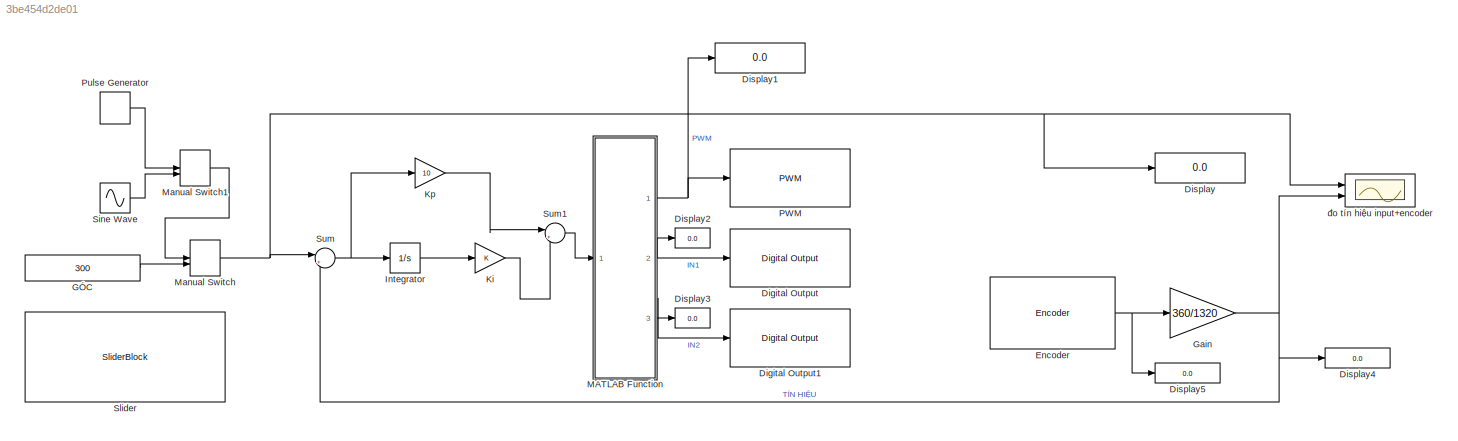
MODEL slx_3be454d2de01
KIND model
CONFIG AbsTol = auto
CONFIG EnableMultiTasking = on
CONFIG FixedStep = auto
CONFIG MaxStep = auto
CONFIG MinStep = auto
CONFIG RelTol = 1e-3
CONFIG SampleTimeConstraint = Unconstrained
CONFIG SolverName = FixedStepAuto
CONFIG StartTime = 0.0
CONFIG StopTime = 10.0
BLOCK [Reference] Digital Output  REF=arduinolib/Digital Output
  Ports = [1]
  SourceBlock = arduinolib/Digital Output
  SourceProductBaseCode = ARDUINO
  SourceType = Arduino Digital Output
BLOCK [Reference] Digital Output1  REF=arduinolib/Digital Output
  Ports = [1]
  SourceBlock = arduinolib/Digital Output
  SourceProductBaseCode = ARDUINO
  SourceType = Arduino Digital Output
BLOCK [Display] Display
  Decimation = 1
  Ports = [1]
BLOCK [Display] Display1
  Decimation = 1
  Ports = [1]
BLOCK [Display] Display2
  Decimation = 1
  Ports = [1]
BLOCK [Display] Display3
  Decimation = 1
  Ports = [1]
BLOCK [Display] Display4
  Decimation = 1
  Ports = [1]
BLOCK [Display] Display5
  Decimation = 1
  Ports = [1]
BLOCK [Reference] Encoder  REF=arduinosensorlib/Encoder
  Ports = [0, 1]
  SourceBlock = arduinosensorlib/Encoder
  SourceProductBaseCode = ARDUINO
  SourceType = Arduino Rotary Encoder
BLOCK [Gain] Gain
  Gain = 360/1320
BLOCK [Constant] GÓC
  OutDataTypeStr = uint16
  Value = 300
  VectorParams1D = off
BLOCK [Integrator] Integrator
  Ports = [1, 1]
BLOCK [Gain] Ki
BLOCK [Gain] Kp
  Gain = 10
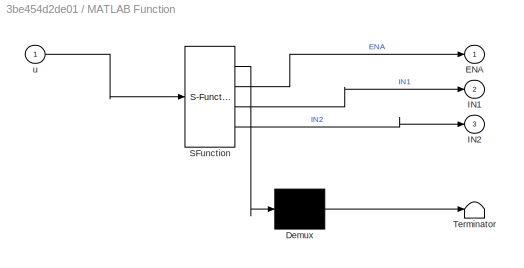
BLOCK [SubSystem] MATLAB Function
  ErrorFcn = Stateflow.Translate.translate
  PermitHierarchicalResolution = ExplicitOnly
  Ports = [1, 3]
  RequestExecContextInheritance = off
  SFBlockType = MATLAB Function
  TreatAsAtomicUnit = on
BLOCK [Demux] MATLAB Function/ Demux 
  Outputs = 1
  Ports = [1, 1]
BLOCK [S-Function] MATLAB Function/ SFunction 
  EnableBusSupport = on
  FunctionName = sf_sfun
  PortCounts = [1 4]
  Ports = [1, 4]
  SFcnIsStateOwnerBlock = off
  SFunctionDeploymentMode = off
  Tag = Stateflow S-Function 2
BLOCK [Terminator] MATLAB Function/ Terminator 
BLOCK [Outport] MATLAB Function/ENA
BLOCK [Outport] MATLAB Function/IN1
  Port = 2
BLOCK [Outport] MATLAB Function/IN2
  Port = 3
BLOCK [Inport] MATLAB Function/u
BLOCK [ManualSwitch] Manual Switch
  CurrentSetting = 0
BLOCK [ManualSwitch] Manual Switch1
BLOCK [Reference] PWM  REF=arduinolib/PWM
  Ports = [1]
  SourceBlock = arduinolib/PWM
  SourceProductBaseCode = ARDUINO
  SourceType = Arduino PWM
BLOCK [DiscretePulseGenerator] Pulse Generator
  Amplitude = 180
  Period = 4
  Ports = [0, 1]
  PulseType = Time based
  PulseWidth = 50
BLOCK [Sin] Sine Wave
  Amplitude = 45
  Ports = [0, 1]
  SampleTime = 0
BLOCK [SliderBlock] Slider
  ScaleMax = 360
BLOCK [Sum] Sum
  Inputs = |+-
  Ports = [2, 1]
BLOCK [Sum] Sum1
  Inputs = |++
  Ports = [2, 1]
BLOCK [Scope] đo tín hiệu input+encoder
  Floating = off
  NumInputPorts = 2
  Ports = [2]
  ScopeSpecificationString = Simulink.scopes.TimeScopeBlockCfg('CurrentConfiguration', extmgr.ConfigurationSet(extmgr.Configuration('Core','General UI',true,'FigureColor',[1 1 1]),extmgr.Configuration('Core','Source UI',true),extmgr.Configuration('Sources','WiredSimulink',true),extmgr.Configuration('Visuals','Time Domain',true,'SerializedDisplays',{struct('MinYLimReal','-24.03409','MaxYLimReal','388.125','YLabelReal','POSITIO...<+1826ch>
NET Encoder:1 -> Display5:1, Gain:1
NET Gain:1 -> Display4:1, Sum:2, đo tín hiệu input+encoder:2
LINE GÓC:1 -> Manual Switch:2
LINE Integrator:1 -> Ki:1
LINE Ki:1 -> Sum1:2
LINE Kp:1 -> Sum1:1
NET MATLAB Function:1 -> Display1:1, PWM:1
NET MATLAB Function:2 -> Digital Output:1, Display2:1
NET MATLAB Function:3 -> Digital Output1:1, Display3:1
LINE Manual Switch1:1 -> Manual Switch:1
NET Manual Switch:1 -> Display:1, Sum:1, đo tín hiệu input+encoder:1
LINE Pulse Generator:1 -> Manual Switch1:1
LINE Sine Wave:1 -> Manual Switch1:2
LINE Sum1:1 -> MATLAB Function:1
NET Sum:1 -> Integrator:1, Kp:1
note: NET lines group one-source signal fan-out (src -> all destinations, sorted); 1:1 wires keep LINE
CHART MATLAB Function states=1 transitions=1
  STATE_LABEL 'eML_blk_kernel()'
  STATE_LABEL 'SCRIPT:\nfunction [ENA,IN1,IN2] = fcn(u)\n\nENA=abs(u);\nif u<0 \n    IN1=1; IN2=0;\nelseif u>0\n    IN1=0; IN2=1;\nelse \n    IN1=0; IN2=0;\nend'
CHART  states=0 transitions=0
